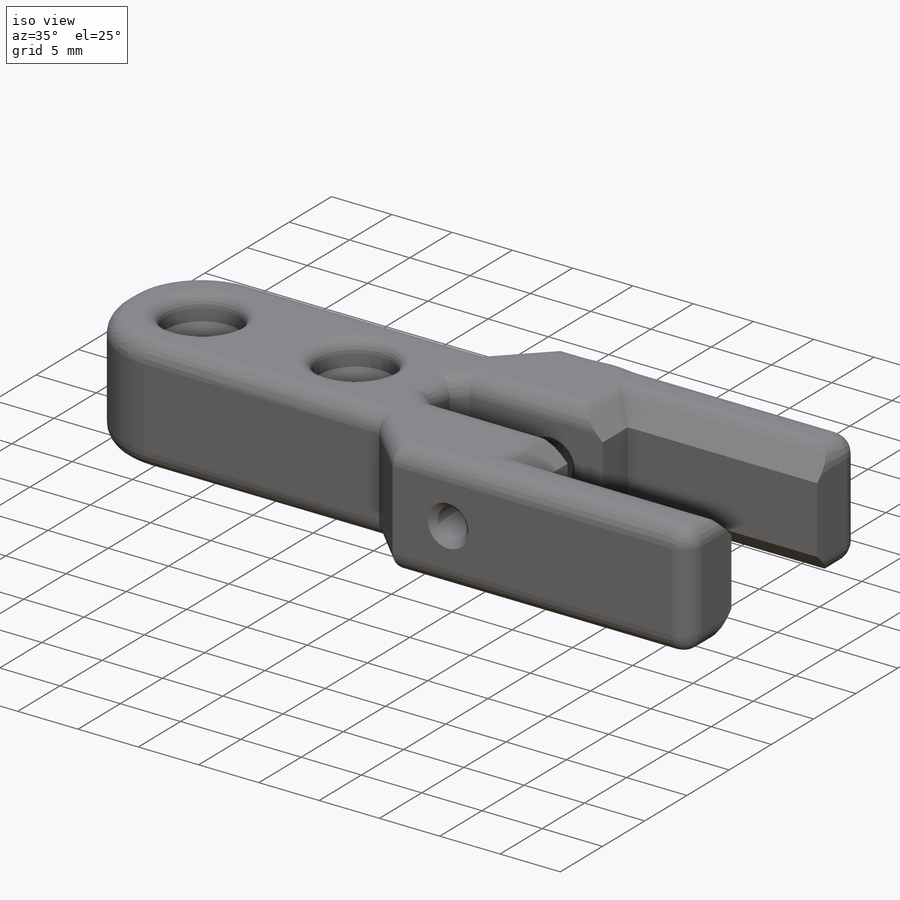
[diagram: iso view]
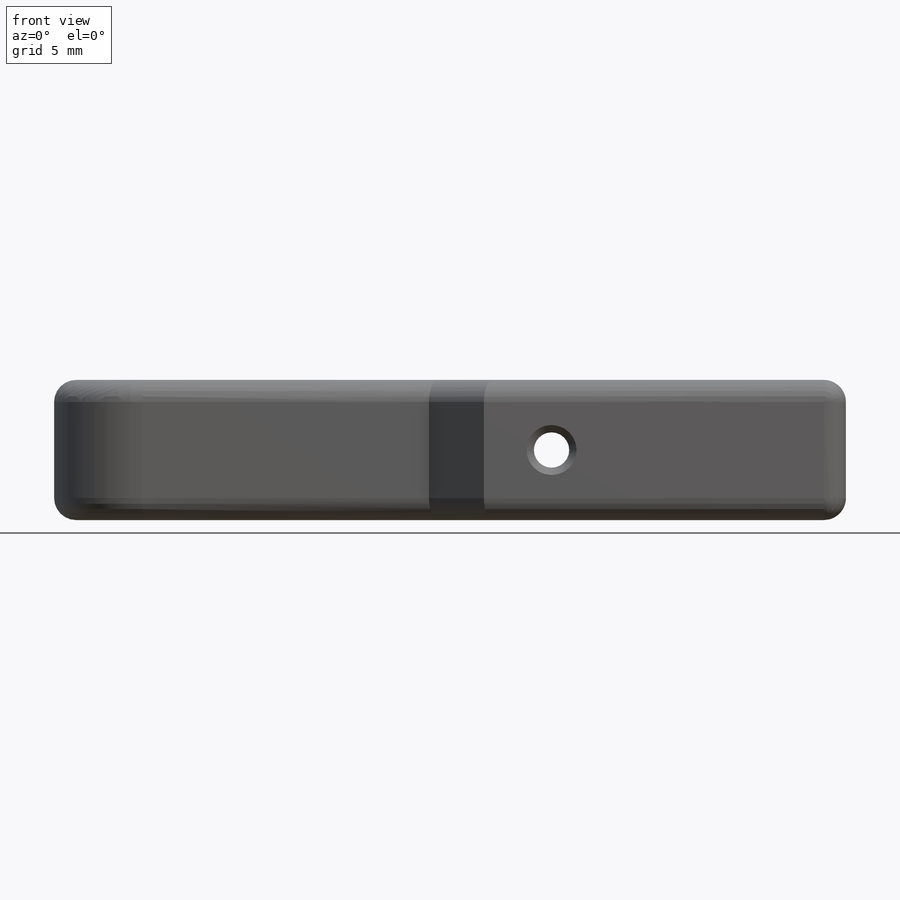
[diagram: front view]
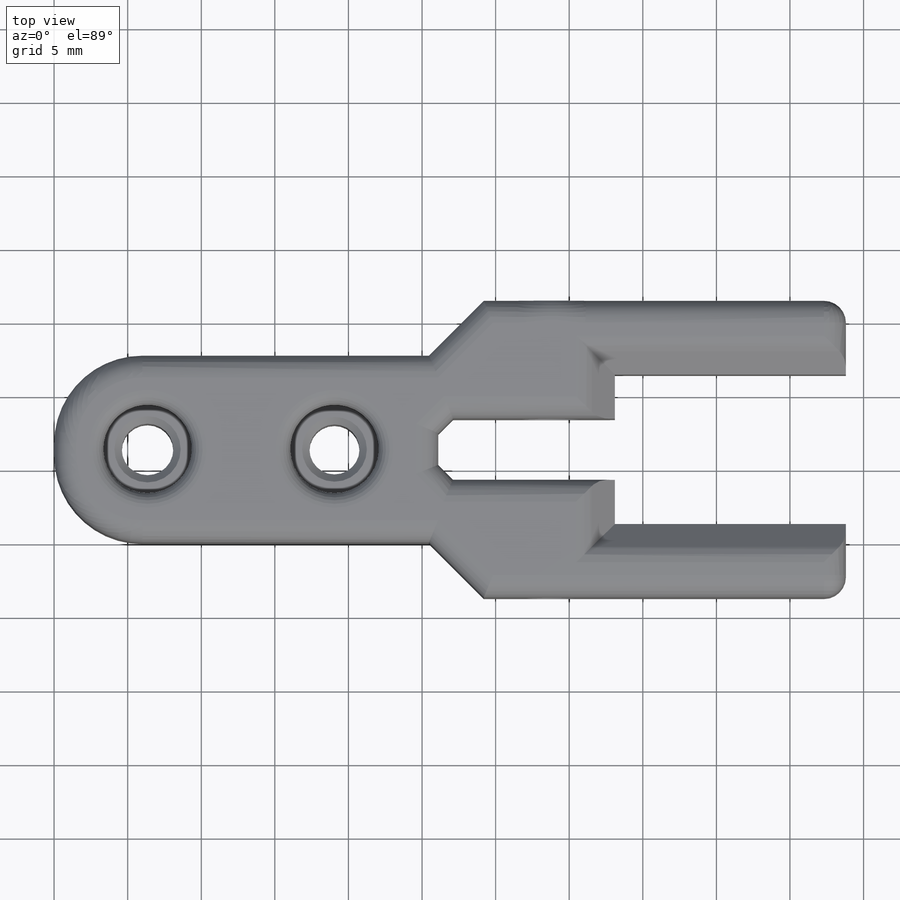
[diagram: top view]
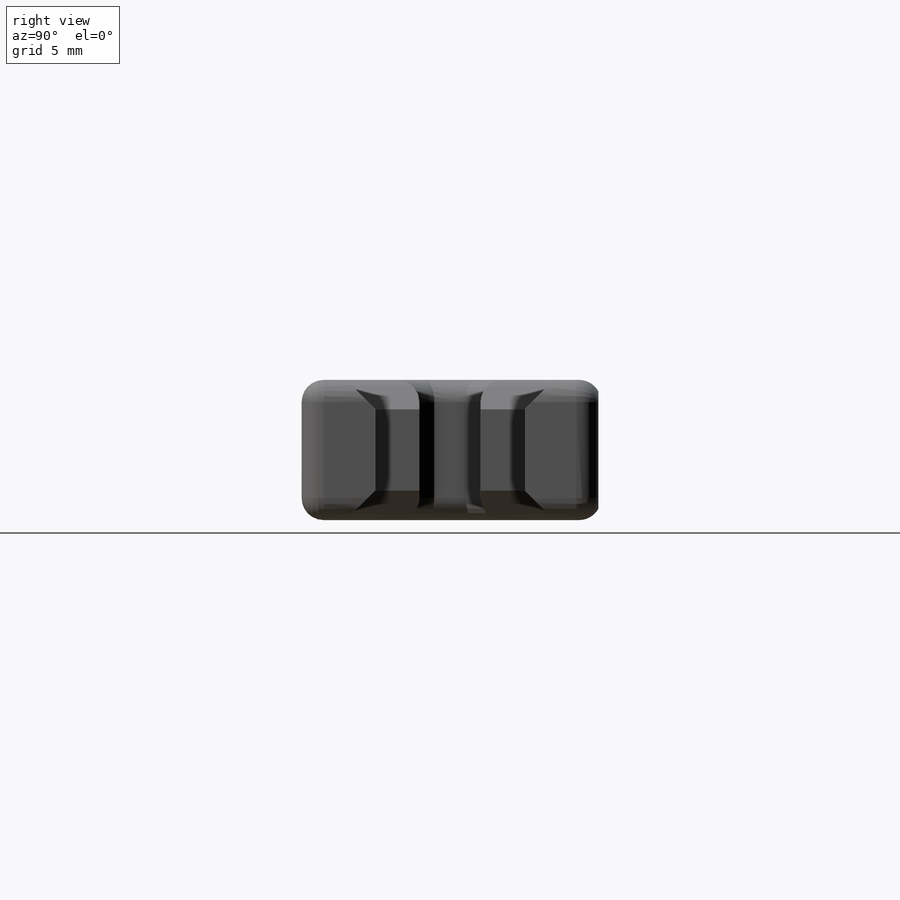
[diagram: right view]
SOLIDWORKS PART (.sldprt)
format: sldprt  version: not decoded by parser v0  size: 474,112 bytes
history: native  units: mm
features: sketch x5, chamfer x5, cut_extrude x4, fillet x4, material x1, extrude x1 (+11 scaffold rows collapsed)
feature tree (31):
  scaffold x11  (default folders/planes/origin — collapsed)
  material  "Material <not specified>"
  sketch  "Sketch1"  dims[c1.D8=~1.338363mm c1.D1=12.7mm c1.D2=25.4mm c1.D3=25.4mm c1.D4=10.16mm c1.D5=1.27mm c1.D6=15.7mm c1.D7=53.8mm c2.D8=6.35mm c2.D9=12.7mm c2.D10=3.0mm c2.D11=3.0mm c2.D12=12.0mm c2.D13=5.0mm c2.D14=5.0mm]
  extrude  "Boss-Extrude1"  Depth=9.525mm
  sketch  "Sketch2"  dims[D1=~3.154702mm]
  cut_extrude  "Cut-Extrude1"  Depth=2mm
  sketch  "Sketch6"  dims[D1=20.0mm]
  cut_extrude  "Cut-Extrude4"  Depth=4mm
  sketch  "Sketch7"  dims[D1=1.45mm]
  cut_extrude  "Cut-Extrude5"  Depth=5mm
  sketch  "Sketch8"  dims[D1=~0.836438mm]
  cut_extrude  "Cut-Extrude6"  [1 undecoded]
  chamfer  "Chamfer1"  Distance=2mm Angle=45deg
  chamfer  "Chamfer2"  Distance=3.8mm Angle=45deg
  chamfer  "Chamfer3"  Distance=1mm Angle=45deg
  chamfer  "Chamfer4"  Distance=0.5mm Angle=45deg
  fillet  "Fillet13"  Radius=1mm
  fillet  "Fillet14"  Radius=6mm
  chamfer  "Chamfer5"  Distance=2mm Angle=45deg
  fillet  "Fillet15"  Radius=1.5mm
  fillet  "Fillet16"  Radius=1.5mm
decode coverage: 18 of 19 modeling features carry decoded parameters
note: ~ marks probable driven/reference dimensions
note: 1 parameter value undecoded
note: suppression state not decoded; provenance and decode notes live in map.json
